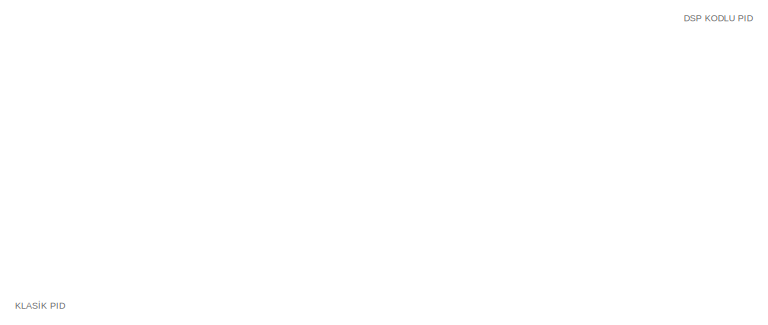
[diagram: root canvas - part 1/11, top right region]
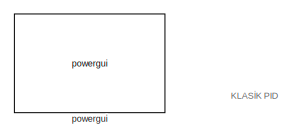
[diagram: root canvas - part 2/11, top left region]
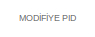
[diagram: root canvas - part 3/11, top center region]
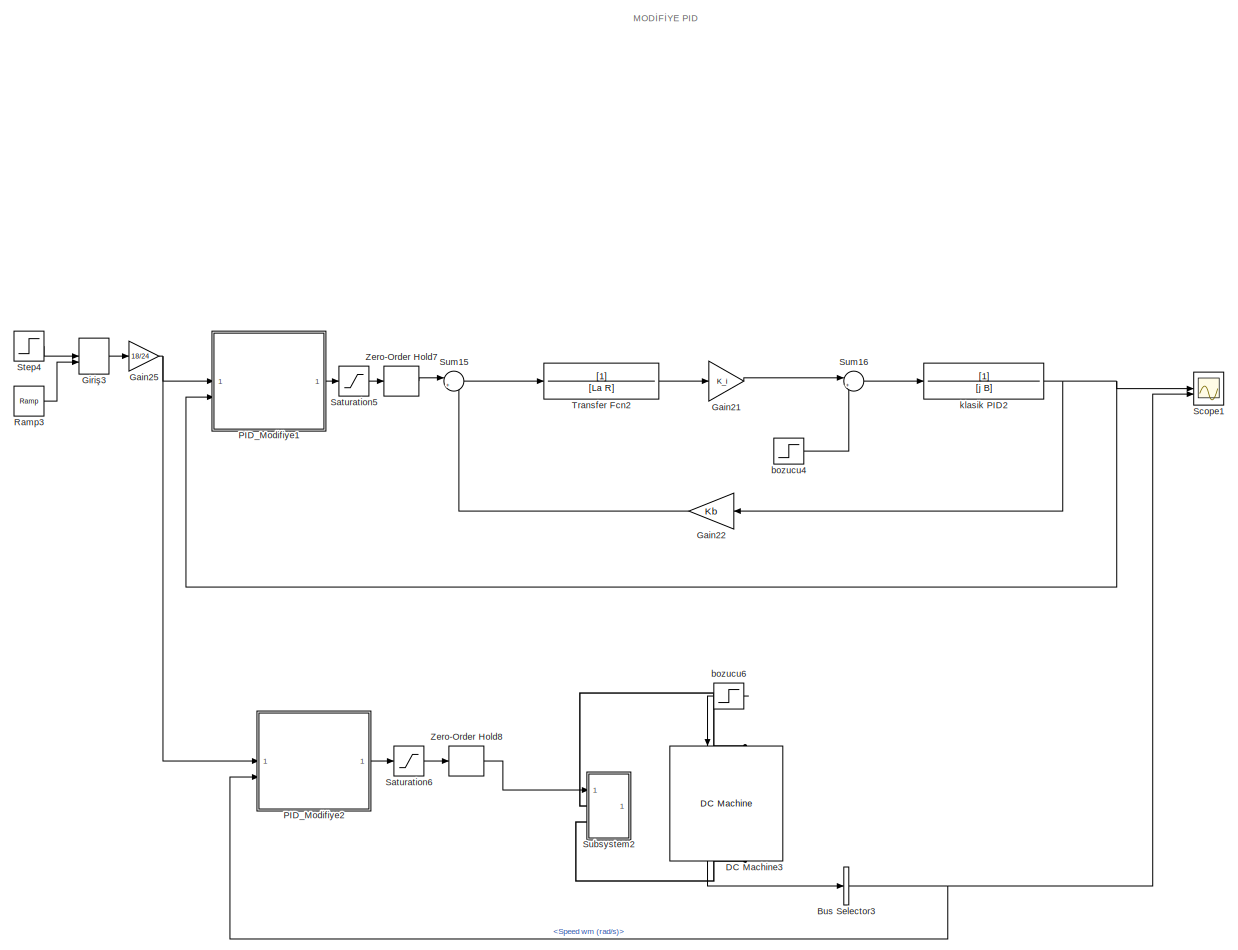
[diagram: root canvas - part 4/11, middle right region]
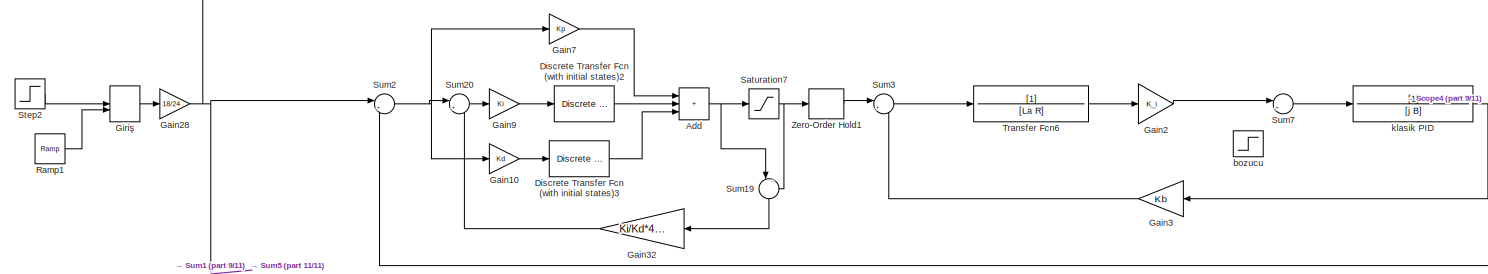
[diagram: root canvas - part 5/11, middle left region]
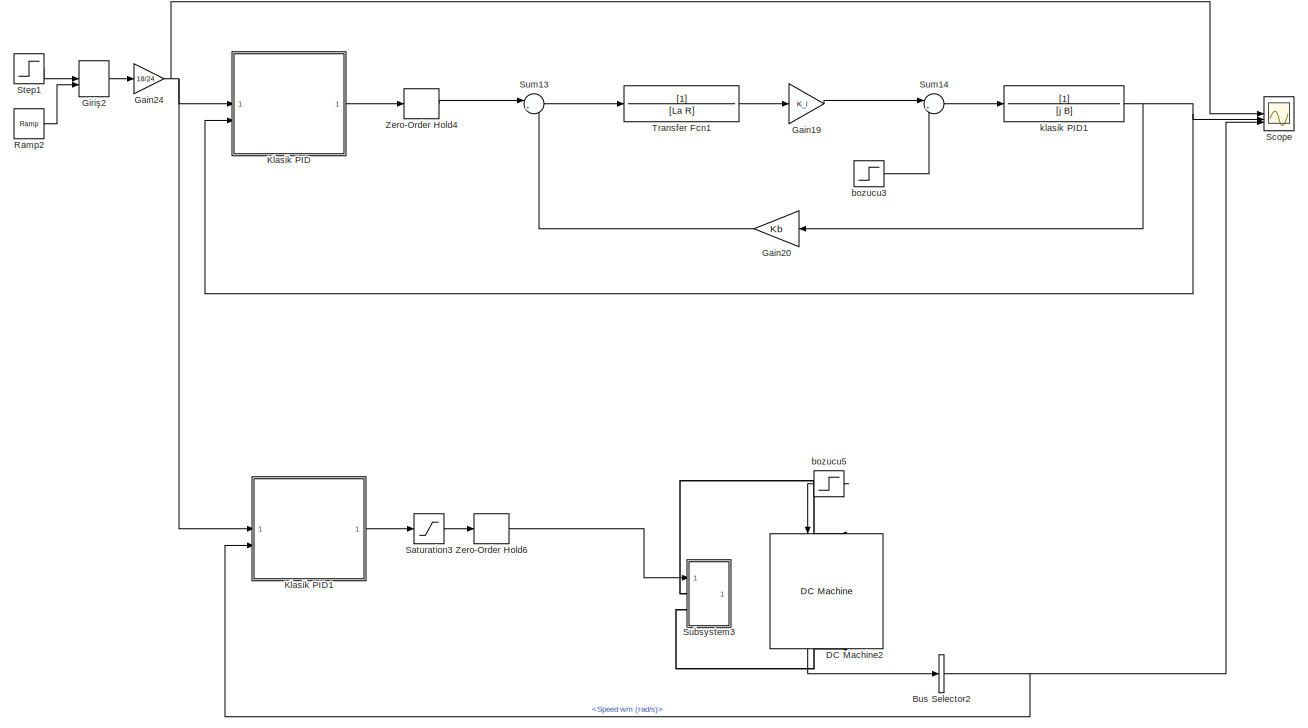
[diagram: root canvas - part 6/11, middle right region]
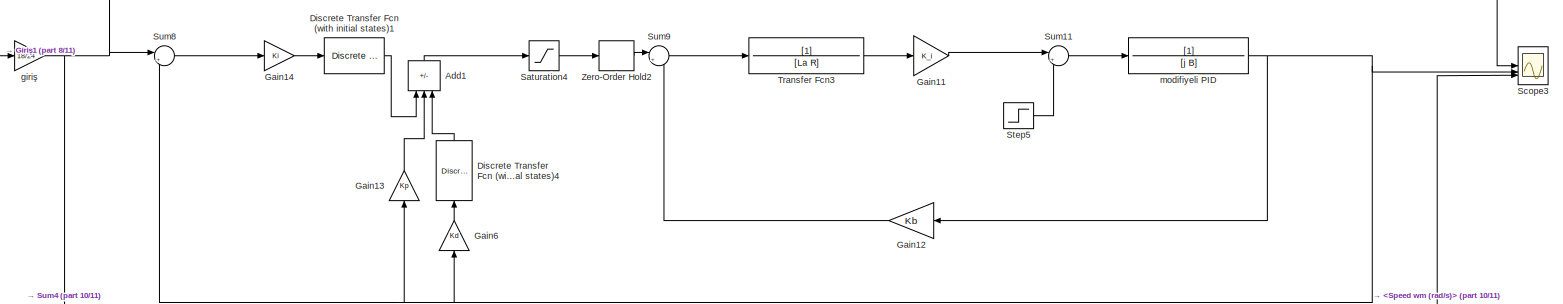
[diagram: root canvas - part 7/11, central region]
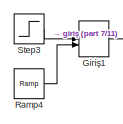
[diagram: root canvas - part 8/11, middle left region]
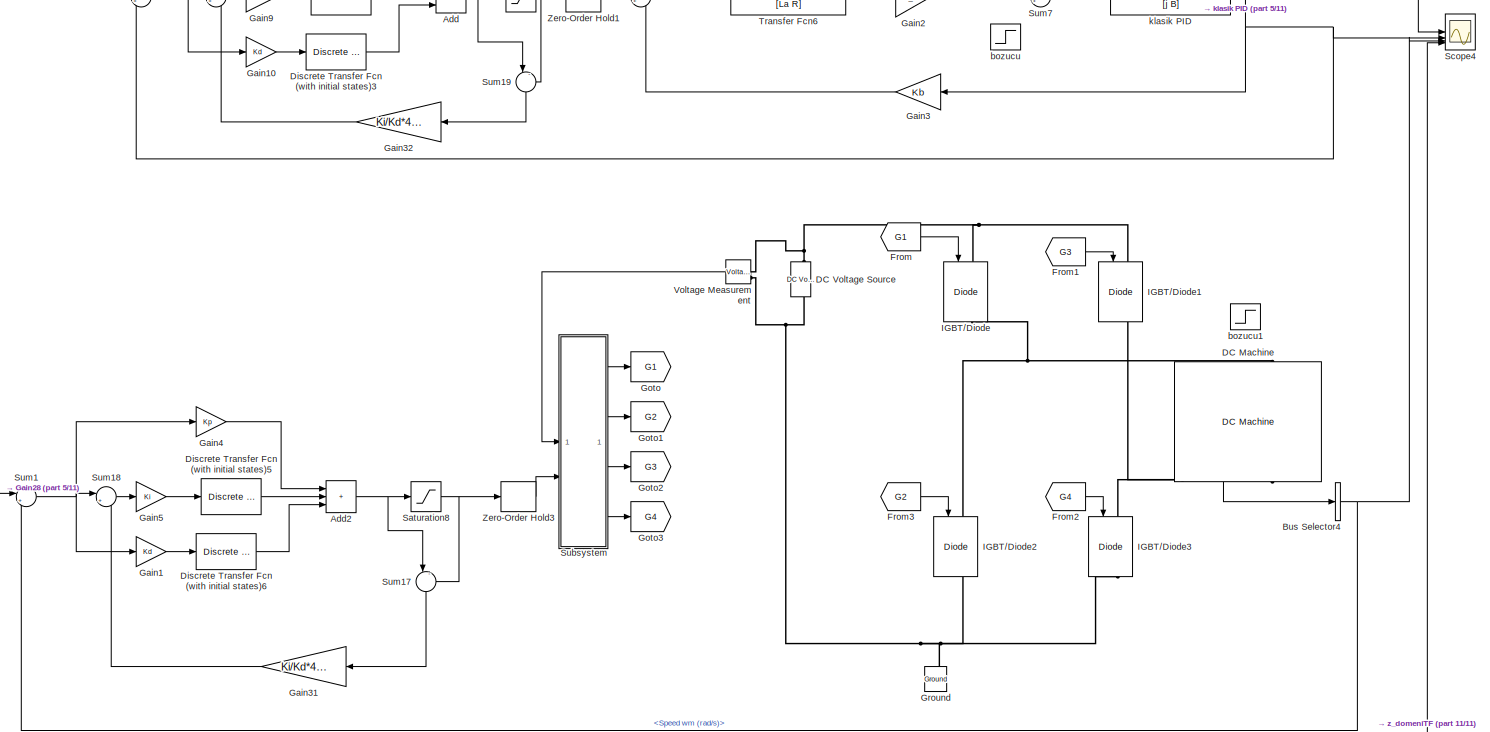
[diagram: root canvas - part 9/11, middle left region]
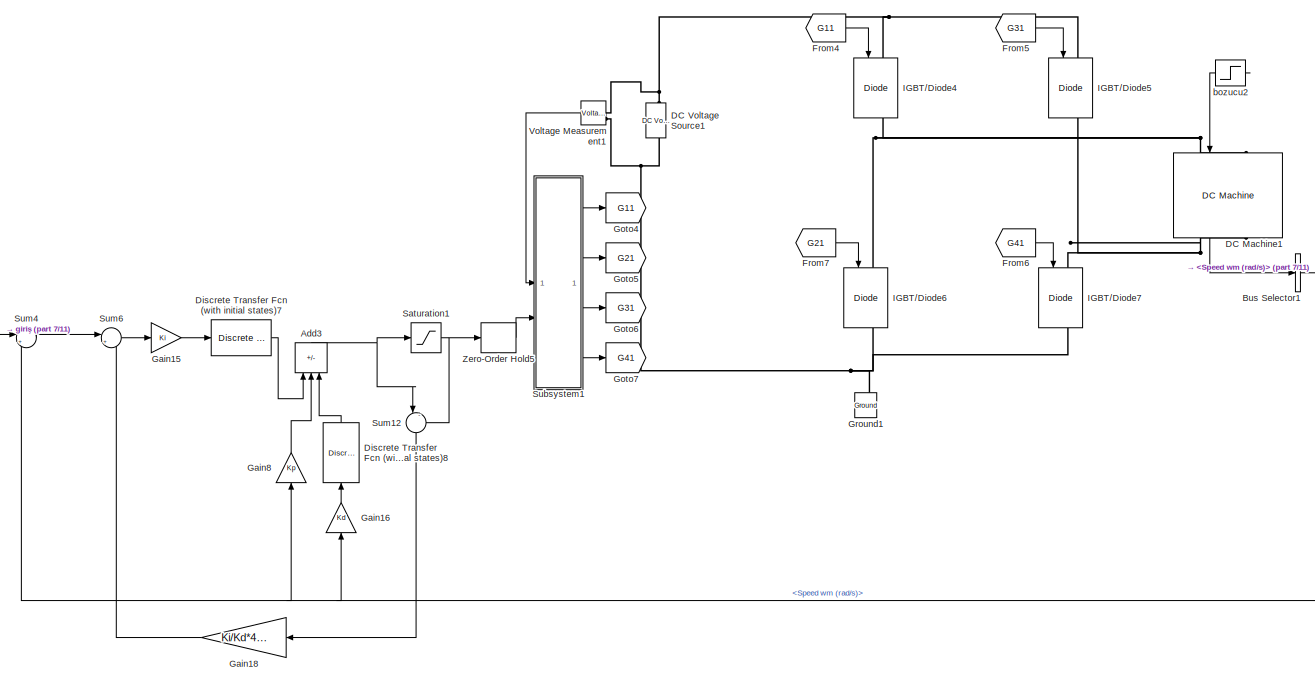
[diagram: root canvas - part 10/11, bottom center region]
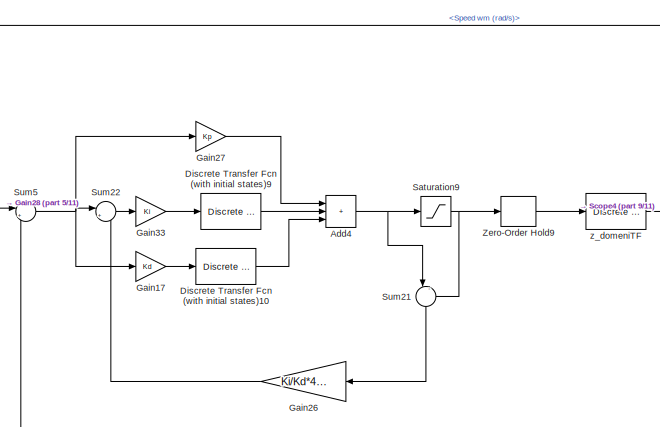
[diagram: root canvas - part 11/11, bottom left region]
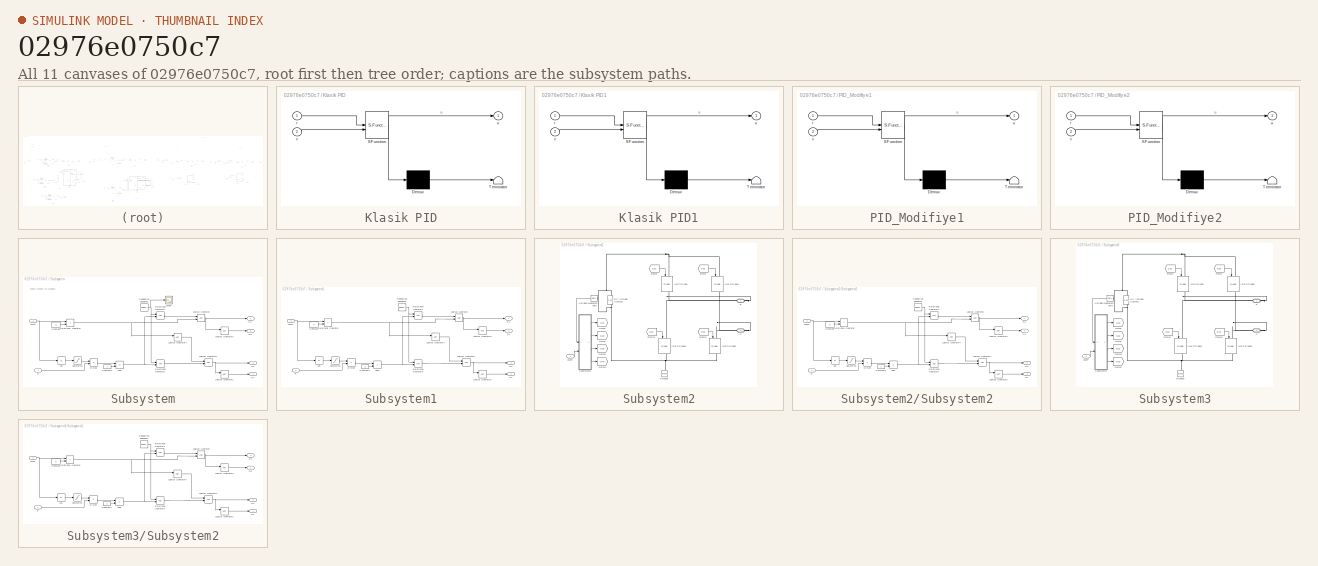
[diagram: thumbnail index - all 11 canvases of the model, root first then tree order]
MODEL slx_02976e0750c7
KIND model
CONFIG AbsTol = auto
CONFIG EnableMultiTasking = off
CONFIG FixedStep = auto
CONFIG MaxStep = auto
CONFIG MinStep = auto
CONFIG RelTol = 1e-3
CONFIG SampleTimeConstraint = Unconstrained
CONFIG SolverName = VariableStepAuto
CONFIG StartTime = 0.0
CONFIG StopTime = 5
BLOCK [Sum] Add
  Commented = on
  IconShape = rectangular
  Inputs = +++
BLOCK [Sum] Add1
  Commented = on
  IconShape = rectangular
  Inputs = +--
  NameLocation = right
BLOCK [Sum] Add2
  Commented = on
  IconShape = rectangular
  Inputs = +++
BLOCK [Sum] Add3
  Commented = on
  IconShape = rectangular
  Inputs = +--
  NameLocation = right
BLOCK [Sum] Add4
  Commented = on
  IconShape = rectangular
  Inputs = +++
BLOCK [BusSelector] Bus Selector1
  Commented = on
  OutputSignals = Speed wm (rad/s)
BLOCK [BusSelector] Bus Selector2
  Commented = on
  OutputSignals = Speed wm (rad/s)
BLOCK [BusSelector] Bus Selector3
  OutputSignals = Speed wm (rad/s)
BLOCK [BusSelector] Bus Selector4
  Commented = on
  OutputSignals = Speed wm (rad/s)
BLOCK [Reference] DC Machine  REF=spsDCMachineLib/DC Machine
  Commented = on
  LibrarySourceBlock = sps_lib/Electrical Machines/DC Machine
  NameLocation = left
  SourceBlock = spsDCMachineLib/DC Machine
  SourceType = DC machine
BLOCK [Reference] DC Machine1  REF=spsDCMachineLib/DC Machine
  Commented = on
  LibrarySourceBlock = sps_lib/Electrical Machines/DC Machine
  NameLocation = left
  SourceBlock = spsDCMachineLib/DC Machine
  SourceType = DC machine
BLOCK [Reference] DC Machine2  REF=spsDCMachineLib/DC Machine
  Commented = on
  LibrarySourceBlock = sps_lib/Electrical Machines/DC Machine
  NameLocation = left
  SourceBlock = spsDCMachineLib/DC Machine
  SourceType = DC machine
BLOCK [Reference] DC Machine3  REF=spsDCMachineLib/DC Machine
  LibrarySourceBlock = sps_lib/Electrical Machines/DC Machine
  NameLocation = left
  SourceBlock = spsDCMachineLib/DC Machine
  SourceType = DC machine
BLOCK [Reference] DC Voltage Source  REF=spsDCVoltageSourceLib/DC Voltage Source
  Commented = on
  LibrarySourceBlock = sps_lib/Sources/DC Voltage Source
  SourceBlock = spsDCVoltageSourceLib/DC Voltage Source
  SourceType = DC Voltage Source
BLOCK [Reference] DC Voltage Source1  REF=spsDCVoltageSourceLib/DC Voltage Source
  Commented = on
  LibrarySourceBlock = sps_lib/Sources/DC Voltage Source
  SourceBlock = spsDCVoltageSourceLib/DC Voltage Source
  SourceType = DC Voltage Source
BLOCK [Reference] Discrete Transfer Fcn (with initial states)1  REF=simulink_extras/Additional
Discrete/Discrete
Transfer Fcn
(with initial states)
  Commented = on
  SourceBlock = simulink_extras/Additional\nDiscrete/Discrete\nTransfer Fcn\n(with initial states)
  SourceType = Discrete Transfer Function with Initial States
BLOCK [Reference] Discrete Transfer Fcn (with initial states)10  REF=simulink_extras/Additional
Discrete/Discrete
Transfer Fcn
(with initial states)
  Commented = on
  SourceBlock = simulink_extras/Additional\nDiscrete/Discrete\nTransfer Fcn\n(with initial states)
  SourceType = Discrete Transfer Function with Initial States
BLOCK [Reference] Discrete Transfer Fcn (with initial states)2  REF=simulink_extras/Additional
Discrete/Discrete
Transfer Fcn
(with initial states)
  Commented = on
  SourceBlock = simulink_extras/Additional\nDiscrete/Discrete\nTransfer Fcn\n(with initial states)
  SourceType = Discrete Transfer Function with Initial States
BLOCK [Reference] Discrete Transfer Fcn (with initial states)3  REF=simulink_extras/Additional
Discrete/Discrete
Transfer Fcn
(with initial states)
  Commented = on
  SourceBlock = simulink_extras/Additional\nDiscrete/Discrete\nTransfer Fcn\n(with initial states)
  SourceType = Discrete Transfer Function with Initial States
BLOCK [Reference] Discrete Transfer Fcn (with initial states)4  REF=simulink_extras/Additional
Discrete/Discrete
Transfer Fcn
(with initial states)
  Commented = on
  NameLocation = right
  SourceBlock = simulink_extras/Additional\nDiscrete/Discrete\nTransfer Fcn\n(with initial states)
  SourceType = Discrete Transfer Function with Initial States
BLOCK [Reference] Discrete Transfer Fcn (with initial states)5  REF=simulink_extras/Additional
Discrete/Discrete
Transfer Fcn
(with initial states)
  Commented = on
  SourceBlock = simulink_extras/Additional\nDiscrete/Discrete\nTransfer Fcn\n(with initial states)
  SourceType = Discrete Transfer Function with Initial States
BLOCK [Reference] Discrete Transfer Fcn (with initial states)6  REF=simulink_extras/Additional
Discrete/Discrete
Transfer Fcn
(with initial states)
  Commented = on
  SourceBlock = simulink_extras/Additional\nDiscrete/Discrete\nTransfer Fcn\n(with initial states)
  SourceType = Discrete Transfer Function with Initial States
BLOCK [Reference] Discrete Transfer Fcn (with initial states)7  REF=simulink_extras/Additional
Discrete/Discrete
Transfer Fcn
(with initial states)
  Commented = on
  SourceBlock = simulink_extras/Additional\nDiscrete/Discrete\nTransfer Fcn\n(with initial states)
  SourceType = Discrete Transfer Function with Initial States
BLOCK [Reference] Discrete Transfer Fcn (with initial states)8  REF=simulink_extras/Additional
Discrete/Discrete
Transfer Fcn
(with initial states)
  Commented = on
  NameLocation = right
  SourceBlock = simulink_extras/Additional\nDiscrete/Discrete\nTransfer Fcn\n(with initial states)
  SourceType = Discrete Transfer Function with Initial States
BLOCK [Reference] Discrete Transfer Fcn (with initial states)9  REF=simulink_extras/Additional
Discrete/Discrete
Transfer Fcn
(with initial states)
  Commented = on
  SourceBlock = simulink_extras/Additional\nDiscrete/Discrete\nTransfer Fcn\n(with initial states)
  SourceType = Discrete Transfer Function with Initial States
BLOCK [From] From
  Commented = on
  GotoTag = G1
BLOCK [From] From1
  Commented = on
  GotoTag = G3
BLOCK [From] From2
  Commented = on
  GotoTag = G4
BLOCK [From] From3
  Commented = on
  GotoTag = G2
BLOCK [From] From4
  Commented = on
  GotoTag = G11
BLOCK [From] From5
  Commented = on
  GotoTag = G31
BLOCK [From] From6
  Commented = on
  GotoTag = G41
BLOCK [From] From7
  Commented = on
  GotoTag = G21
BLOCK [Gain] Gain1
  Commented = on
  Gain = Kd
BLOCK [Gain] Gain10
  Commented = on
  Gain = Kd
BLOCK [Gain] Gain11
  Commented = on
  Gain = K_i
BLOCK [Gain] Gain12
  Commented = on
  Gain = Kb
BLOCK [Gain] Gain13
  Commented = on
  Gain = Kp
  NameLocation = right
BLOCK [Gain] Gain14
  Commented = on
  Gain = Ki
BLOCK [Gain] Gain15
  Commented = on
  Gain = Ki
BLOCK [Gain] Gain16
  Commented = on
  Gain = Kd
  NameLocation = right
BLOCK [Gain] Gain17
  Commented = on
  Gain = Kd
BLOCK [Gain] Gain18
  Commented = on
  Gain = Ki/Kd*4.35
BLOCK [Gain] Gain19
  Commented = on
  Gain = K_i
BLOCK [Gain] Gain2
  Commented = on
  Gain = K_i
BLOCK [Gain] Gain20
  Commented = on
  Gain = Kb
BLOCK [Gain] Gain21
  Gain = K_i
BLOCK [Gain] Gain22
  Gain = Kb
BLOCK [Gain] Gain24
  Commented = on
  Gain = 18/24
BLOCK [Gain] Gain25
  Gain = 18/24
BLOCK [Gain] Gain26
  Commented = on
  Gain = Ki/Kd*4.35
BLOCK [Gain] Gain27
  Commented = on
  Gain = Kp
BLOCK [Gain] Gain28
  Commented = on
  Gain = 18/24
BLOCK [Gain] Gain3
  Commented = on
  Gain = Kb
BLOCK [Gain] Gain31
  Commented = on
  Gain = Ki/Kd*4.35
BLOCK [Gain] Gain32
  Commented = on
  Gain = Ki/Kd*4.35
BLOCK [Gain] Gain33
  Commented = on
  Gain = Ki
BLOCK [Gain] Gain4
  Commented = on
  Gain = Kp
BLOCK [Gain] Gain5
  Commented = on
  Gain = Ki
BLOCK [Gain] Gain6
  Commented = on
  Gain = Kd
  NameLocation = right
BLOCK [Gain] Gain7
  Commented = on
  Gain = Kp
BLOCK [Gain] Gain8
  Commented = on
  Gain = Kp
  NameLocation = right
BLOCK [Gain] Gain9
  Commented = on
  Gain = Ki
BLOCK [ManualSwitch] Giriş
  Commented = on
BLOCK [ManualSwitch] Giriş1
  Commented = on
BLOCK [ManualSwitch] Giriş2
  Commented = on
BLOCK [ManualSwitch] Giriş3
BLOCK [Goto] Goto
  Commented = on
  GotoTag = G1
BLOCK [Goto] Goto1
  Commented = on
  GotoTag = G2
BLOCK [Goto] Goto2
  Commented = on
  GotoTag = G3
BLOCK [Goto] Goto3
  Commented = on
  GotoTag = G4
BLOCK [Goto] Goto4
  Commented = on
  GotoTag = G11
BLOCK [Goto] Goto5
  Commented = on
  GotoTag = G21
BLOCK [Goto] Goto6
  Commented = on
  GotoTag = G31
BLOCK [Goto] Goto7
  Commented = on
  GotoTag = G41
BLOCK [Reference] Ground  REF=spsGroundLib/Ground
  Commented = on
  LibrarySourceBlock = sps_lib/Utilities/Ground
  NameLocation = right
  SourceBlock = spsGroundLib/Ground
  SourceType = Ground
BLOCK [Reference] Ground1  REF=spsGroundLib/Ground
  Commented = on
  LibrarySourceBlock = sps_lib/Utilities/Ground
  NameLocation = right
  SourceBlock = spsGroundLib/Ground
  SourceType = Ground
BLOCK [Reference] IGBT//Diode  REF=spsIGBTDiodeLib/IGBT//Diode
  Commented = on
  LibrarySourceBlock = sps_lib/Power Electronics/IGBT//Diode
  NameLocation = right
  SourceBlock = spsIGBTDiodeLib/IGBT//Diode
  SourceType = IGBT/Diode
BLOCK [Reference] IGBT//Diode1  REF=spsIGBTDiodeLib/IGBT//Diode
  Commented = on
  LibrarySourceBlock = sps_lib/Power Electronics/IGBT//Diode
  NameLocation = right
  SourceBlock = spsIGBTDiodeLib/IGBT//Diode
  SourceType = IGBT/Diode
BLOCK [Reference] IGBT//Diode2  REF=spsIGBTDiodeLib/IGBT//Diode
  Commented = on
  LibrarySourceBlock = sps_lib/Power Electronics/IGBT//Diode
  NameLocation = right
  SourceBlock = spsIGBTDiodeLib/IGBT//Diode
  SourceType = IGBT/Diode
BLOCK [Reference] IGBT//Diode3  REF=spsIGBTDiodeLib/IGBT//Diode
  Commented = on
  LibrarySourceBlock = sps_lib/Power Electronics/IGBT//Diode
  NameLocation = right
  SourceBlock = spsIGBTDiodeLib/IGBT//Diode
  SourceType = IGBT/Diode
BLOCK [Reference] IGBT//Diode4  REF=spsIGBTDiodeLib/IGBT//Diode
  Commented = on
  LibrarySourceBlock = sps_lib/Power Electronics/IGBT//Diode
  NameLocation = right
  SourceBlock = spsIGBTDiodeLib/IGBT//Diode
  SourceType = IGBT/Diode
BLOCK [Reference] IGBT//Diode5  REF=spsIGBTDiodeLib/IGBT//Diode
  Commented = on
  LibrarySourceBlock = sps_lib/Power Electronics/IGBT//Diode
  NameLocation = right
  SourceBlock = spsIGBTDiodeLib/IGBT//Diode
  SourceType = IGBT/Diode
BLOCK [Reference] IGBT//Diode6  REF=spsIGBTDiodeLib/IGBT//Diode
  Commented = on
  LibrarySourceBlock = sps_lib/Power Electronics/IGBT//Diode
  NameLocation = right
  SourceBlock = spsIGBTDiodeLib/IGBT//Diode
  SourceType = IGBT/Diode
BLOCK [Reference] IGBT//Diode7  REF=spsIGBTDiodeLib/IGBT//Diode
  Commented = on
  LibrarySourceBlock = sps_lib/Power Electronics/IGBT//Diode
  NameLocation = right
  SourceBlock = spsIGBTDiodeLib/IGBT//Diode
  SourceType = IGBT/Diode
BLOCK [SubSystem] Klasik PID
  Commented = on
  ErrorFcn = Stateflow.Translate.translate
  PermitHierarchicalResolution = ExplicitOnly
  SFBlockType = MATLAB Function
  TreatAsAtomicUnit = on
BLOCK [Demux] Klasik PID/ Demux 
  Outputs = 1
BLOCK [S-Function] Klasik PID/ SFunction 
  EnableBusSupport = on
  FunctionName = sf_sfun
  Parameters = Kd,Ki,Kp,Ref_max,Ref_min,Ts
  PortCounts = [2 2]
  SFcnIsStateOwnerBlock = off
  SFunctionDeploymentMode = off
  Tag = Stateflow S-Function 2
BLOCK [Terminator] Klasik PID/ Terminator 
BLOCK [Inport] Klasik PID/c
  Port = 2
BLOCK [Inport] Klasik PID/r
BLOCK [Outport] Klasik PID/u
BLOCK [SubSystem] Klasik PID1
  Commented = on
  ErrorFcn = Stateflow.Translate.translate
  PermitHierarchicalResolution = ExplicitOnly
  SFBlockType = MATLAB Function
  TreatAsAtomicUnit = on
BLOCK [Demux] Klasik PID1/ Demux 
  Outputs = 1
BLOCK [S-Function] Klasik PID1/ SFunction 
  EnableBusSupport = on
  FunctionName = sf_sfun
  Parameters = Kd,Ki,Kp,Ref_max,Ref_min,Ts
  PortCounts = [2 2]
  SFcnIsStateOwnerBlock = off
  SFunctionDeploymentMode = off
  Tag = Stateflow S-Function 3
BLOCK [Terminator] Klasik PID1/ Terminator 
BLOCK [Inport] Klasik PID1/c
  Port = 2
BLOCK [Inport] Klasik PID1/r
BLOCK [Outport] Klasik PID1/u
BLOCK [SubSystem] PID_Modifiye1
  ErrorFcn = Stateflow.Translate.translate
  PermitHierarchicalResolution = ExplicitOnly
  SFBlockType = MATLAB Function
  TreatAsAtomicUnit = on
BLOCK [Demux] PID_Modifiye1/ Demux 
  Outputs = 1
BLOCK [S-Function] PID_Modifiye1/ SFunction 
  EnableBusSupport = on
  FunctionName = sf_sfun
  Parameters = Kd,Ki,Kp,Ref_max,Ref_min,Ts
  PortCounts = [2 2]
  SFcnIsStateOwnerBlock = off
  SFunctionDeploymentMode = off
  Tag = Stateflow S-Function 1
BLOCK [Terminator] PID_Modifiye1/ Terminator 
BLOCK [Inport] PID_Modifiye1/c
  Port = 2
BLOCK [Inport] PID_Modifiye1/r
BLOCK [Outport] PID_Modifiye1/u
BLOCK [SubSystem] PID_Modifiye2
  ErrorFcn = Stateflow.Translate.translate
  PermitHierarchicalResolution = ExplicitOnly
  SFBlockType = MATLAB Function
  TreatAsAtomicUnit = on
BLOCK [Demux] PID_Modifiye2/ Demux 
  Outputs = 1
BLOCK [S-Function] PID_Modifiye2/ SFunction 
  EnableBusSupport = on
  FunctionName = sf_sfun
  Parameters = Kd,Ki,Kp,Ref_max,Ref_min,Ts
  PortCounts = [2 2]
  SFcnIsStateOwnerBlock = off
  SFunctionDeploymentMode = off
  Tag = Stateflow S-Function 4
BLOCK [Terminator] PID_Modifiye2/ Terminator 
BLOCK [Inport] PID_Modifiye2/c
  Port = 2
BLOCK [Inport] PID_Modifiye2/r
BLOCK [Outport] PID_Modifiye2/u
BLOCK [Reference] Ramp1  REF=simulink/Sources/Ramp
  Commented = on
  SourceBlock = simulink/Sources/Ramp
  SourceType = Ramp
BLOCK [Reference] Ramp2  REF=simulink/Sources/Ramp
  Commented = on
  SourceBlock = simulink/Sources/Ramp
  SourceType = Ramp
BLOCK [Reference] Ramp3  REF=simulink/Sources/Ramp
  SourceBlock = simulink/Sources/Ramp
  SourceType = Ramp
BLOCK [Reference] Ramp4  REF=simulink/Sources/Ramp
  Commented = on
  SourceBlock = simulink/Sources/Ramp
  SourceType = Ramp
BLOCK [Saturate] Saturation1
  Commented = on
  LowerLimit = -Ref
  UpperLimit = Ref
BLOCK [Saturate] Saturation3
  Commented = on
  LowerLimit = -Ref
  UpperLimit = Ref
BLOCK [Saturate] Saturation4
  Commented = on
  LowerLimit = -Ref
  UpperLimit = Ref
BLOCK [Saturate] Saturation5
  LowerLimit = -Ref
  UpperLimit = Ref
BLOCK [Saturate] Saturation6
  LowerLimit = -Ref
  UpperLimit = Ref
BLOCK [Saturate] Saturation7
  Commented = on
  LowerLimit = -Ref
  UpperLimit = Ref
BLOCK [Saturate] Saturation8
  Commented = on
  LowerLimit = -Ref
  UpperLimit = Ref
BLOCK [Saturate] Saturation9
  Commented = on
  LowerLimit = -Ref
  UpperLimit = Ref
BLOCK [Scope] Scope
  Commented = on
  Floating = off
  NumInputPorts = 3
  ScopeSpecificationString = Simulink.scopes.TimeScopeBlockCfg('CurrentConfiguration', extmgr.ConfigurationSet(extmgr.Configuration('Core','General UI',true),extmgr.Configuration('Core','Source UI',true),extmgr.Configuration('Sources','WiredSimulink',true,'DataLoggingVariableName','ScopeData1'),extmgr.Configuration('Visuals','Time Domain',true,'SerializedDisplays',{struct('MinYLimReal','-3.24692','MaxYLimReal','29.22229','YLa...<+1638ch>
BLOCK [Scope] Scope1
  Floating = off
  NumInputPorts = 2
  ScopeSpecificationString = Simulink.scopes.TimeScopeBlockCfg('CurrentConfiguration', extmgr.ConfigurationSet(extmgr.Configuration('Core','General UI',true),extmgr.Configuration('Core','Source UI',true),extmgr.Configuration('Sources','WiredSimulink',true,'DataLoggingVariableName','ScopeData2'),extmgr.Configuration('Visuals','Time Domain',true,'SerializedDisplays',{struct('MinYLimReal','-3.24692','MaxYLimReal','29.22229','YLa...<+1527ch>
BLOCK [Scope] Scope3
  Commented = on
  Floating = off
  NumInputPorts = 3
  ScopeSpecificationString = Simulink.scopes.TimeScopeBlockCfg('CurrentConfiguration', extmgr.ConfigurationSet(extmgr.Configuration('Core','General UI',true),extmgr.Configuration('Core','Source UI',true),extmgr.Configuration('Sources','WiredSimulink',true,'DataLoggingVariableName','ScopeData2'),extmgr.Configuration('Visuals','Time Domain',true,'SerializedDisplays',{struct('MinYLimReal','17.22728','MaxYLimReal','18.24025','YLa...<+1694ch>
BLOCK [Scope] Scope4
  Commented = on
  Floating = off
  NumInputPorts = 4
  ScopeSpecificationString = Simulink.scopes.TimeScopeBlockCfg('CurrentConfiguration', extmgr.ConfigurationSet(extmgr.Configuration('Core','General UI',true),extmgr.Configuration('Core','Source UI',true),extmgr.Configuration('Sources','WiredSimulink',true,'DataLoggingVariableName','ScopeData1'),extmgr.Configuration('Visuals','Time Domain',true,'SerializedDisplays',{struct('MinYLimReal','-4.00000','MaxYLimReal','36.00000','YLa...<+1747ch>
BLOCK [Step] Step1
  After = Ref
  Commented = on
  SampleTime = 0
  Time = 0
BLOCK [Step] Step2
  After = Ref
  Commented = on
  SampleTime = 0
  Time = 0
BLOCK [Step] Step3
  After = Ref
  Commented = on
  SampleTime = 0
  Time = 0
BLOCK [Step] Step4
  After = Ref
  SampleTime = 0
  Time = 0
BLOCK [Step] Step5
  After = 0
  Commented = on
  SampleTime = 0
  Time = 0
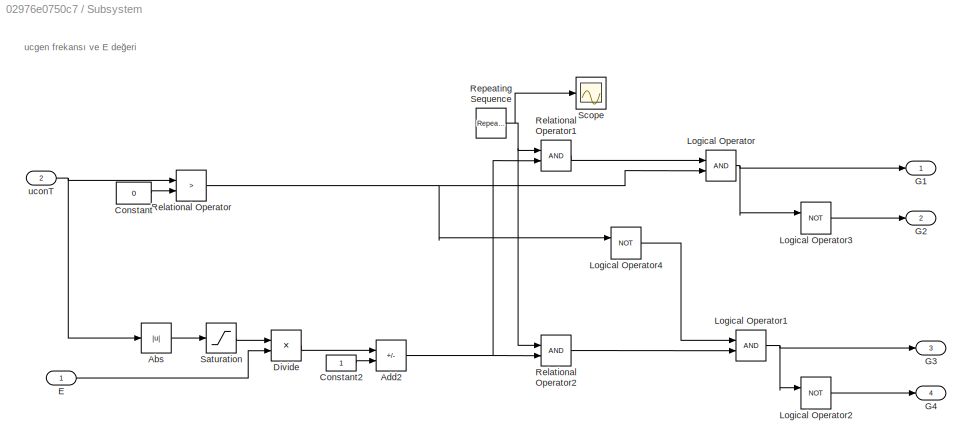
BLOCK [SubSystem] Subsystem
  Commented = on
BLOCK [Abs] Subsystem/Abs
  SaturateOnIntegerOverflow = off
BLOCK [Sum] Subsystem/Add2
  IconShape = rectangular
  Inputs = -+
BLOCK [Constant] Subsystem/Constant
  Value = 0
BLOCK [Constant] Subsystem/Constant2
BLOCK [Product] Subsystem/Divide
  Inputs = */
BLOCK [Inport] Subsystem/E
BLOCK [Outport] Subsystem/G1
BLOCK [Outport] Subsystem/G2
  Port = 2
BLOCK [Outport] Subsystem/G3
  Port = 3
BLOCK [Outport] Subsystem/G4
  Port = 4
BLOCK [Logic] Subsystem/Logical Operator
  AllPortsSameDT = off
  OutDataTypeStr = boolean
BLOCK [Logic] Subsystem/Logical Operator1
  AllPortsSameDT = off
  OutDataTypeStr = boolean
BLOCK [Logic] Subsystem/Logical Operator2
  AllPortsSameDT = off
  Operator = NOT
  OutDataTypeStr = boolean
BLOCK [Logic] Subsystem/Logical Operator3
  AllPortsSameDT = off
  Operator = NOT
  OutDataTypeStr = boolean
BLOCK [Logic] Subsystem/Logical Operator4
  AllPortsSameDT = off
  Operator = NOT
  OutDataTypeStr = boolean
BLOCK [RelationalOperator] Subsystem/Relational Operator
  InputSameDT = off
  Operator = >
  OutDataTypeStr = boolean
  RndMeth = Simplest
BLOCK [RelationalOperator] Subsystem/Relational Operator1
  InputSameDT = off
  OutDataTypeStr = boolean
  RndMeth = Simplest
BLOCK [RelationalOperator] Subsystem/Relational Operator2
  InputSameDT = off
  OutDataTypeStr = boolean
  RndMeth = Simplest
BLOCK [Reference] Subsystem/Repeating Sequence  REF=simulink/Sources/Repeating
Sequence
  SourceBlock = simulink/Sources/Repeating\nSequence
  SourceType = Repeating table
BLOCK [Saturate] Subsystem/Saturation
  UpperLimit = 24
BLOCK [Scope] Subsystem/Scope
  Floating = off
  NumInputPorts = 1
  ScopeSpecificationString = Simulink.scopes.TimeScopeBlockCfg('CurrentConfiguration', extmgr.ConfigurationSet(extmgr.Configuration('Core','General UI',true),extmgr.Configuration('Core','Source UI',true),extmgr.Configuration('Sources','WiredSimulink',true,'DataLoggingVariableName','ScopeData2'),extmgr.Configuration('Visuals','Time Domain',true,'SerializedDisplays',{struct('MinYLimReal','-0.06643','MaxYLimReal','1.07754','YLab...<+1543ch>
BLOCK [Inport] Subsystem/uconT
  Port = 2
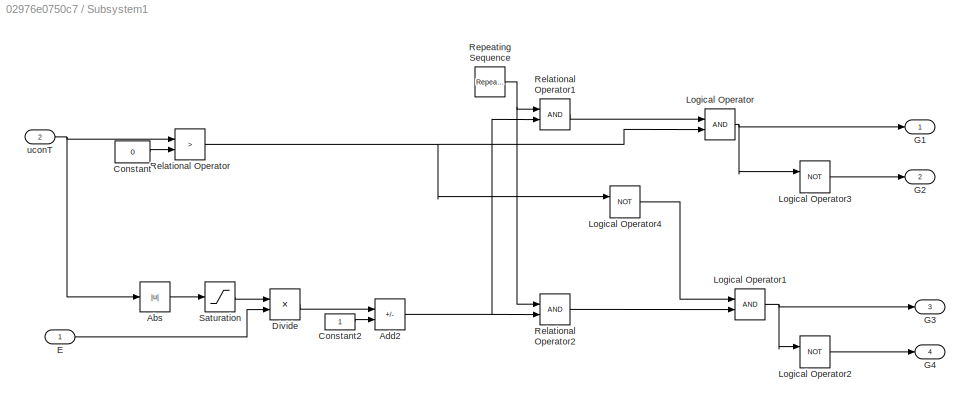
BLOCK [SubSystem] Subsystem1
  Commented = on
BLOCK [Abs] Subsystem1/Abs
  SaturateOnIntegerOverflow = off
BLOCK [Sum] Subsystem1/Add2
  IconShape = rectangular
  Inputs = -+
BLOCK [Constant] Subsystem1/Constant
  Value = 0
BLOCK [Constant] Subsystem1/Constant2
BLOCK [Product] Subsystem1/Divide
  Inputs = */
BLOCK [Inport] Subsystem1/E
BLOCK [Outport] Subsystem1/G1
BLOCK [Outport] Subsystem1/G2
  Port = 2
BLOCK [Outport] Subsystem1/G3
  Port = 3
BLOCK [Outport] Subsystem1/G4
  Port = 4
BLOCK [Logic] Subsystem1/Logical Operator
  AllPortsSameDT = off
  OutDataTypeStr = boolean
BLOCK [Logic] Subsystem1/Logical Operator1
  AllPortsSameDT = off
  OutDataTypeStr = boolean
BLOCK [Logic] Subsystem1/Logical Operator2
  AllPortsSameDT = off
  Operator = NOT
  OutDataTypeStr = boolean
BLOCK [Logic] Subsystem1/Logical Operator3
  AllPortsSameDT = off
  Operator = NOT
  OutDataTypeStr = boolean
BLOCK [Logic] Subsystem1/Logical Operator4
  AllPortsSameDT = off
  Operator = NOT
  OutDataTypeStr = boolean
BLOCK [RelationalOperator] Subsystem1/Relational Operator
  InputSameDT = off
  Operator = >
  OutDataTypeStr = boolean
  RndMeth = Simplest
BLOCK [RelationalOperator] Subsystem1/Relational Operator1
  InputSameDT = off
  OutDataTypeStr = boolean
  RndMeth = Simplest
BLOCK [RelationalOperator] Subsystem1/Relational Operator2
  InputSameDT = off
  OutDataTypeStr = boolean
  RndMeth = Simplest
BLOCK [Reference] Subsystem1/Repeating Sequence  REF=simulink/Sources/Repeating
Sequence
  SourceBlock = simulink/Sources/Repeating\nSequence
  SourceType = Repeating table
BLOCK [Saturate] Subsystem1/Saturation
  LowerLimit = -Ref
  UpperLimit = Ref
BLOCK [Inport] Subsystem1/uconT
  Port = 2
BLOCK [SubSystem] Subsystem2
BLOCK [PMIOPort] Subsystem2/C
  Port = 2
  Side = Left
BLOCK [Reference] Subsystem2/DC Voltage Source2  REF=spsDCVoltageSourceLib/DC Voltage Source
  LibrarySourceBlock = sps_lib/Sources/DC Voltage Source
  SourceBlock = spsDCVoltageSourceLib/DC Voltage Source
  SourceType = DC Voltage Source
BLOCK [PMIOPort] Subsystem2/E
  Side = Left
BLOCK [From] Subsystem2/From10
  GotoTag = G43
BLOCK [From] Subsystem2/From11
  GotoTag = G23
BLOCK [From] Subsystem2/From8
  GotoTag = G13
BLOCK [From] Subsystem2/From9
  GotoTag = G33
BLOCK [Goto] Subsystem2/Goto10
  GotoTag = G33
BLOCK [Goto] Subsystem2/Goto11
  GotoTag = G43
BLOCK [Goto] Subsystem2/Goto8
  GotoTag = G13
BLOCK [Goto] Subsystem2/Goto9
  GotoTag = G23
BLOCK [Reference] Subsystem2/Ground2  REF=spsGroundLib/Ground
  LibrarySourceBlock = sps_lib/Utilities/Ground
  NameLocation = right
  SourceBlock = spsGroundLib/Ground
  SourceType = Ground
BLOCK [Reference] Subsystem2/IGBT//Diode  REF=spsIGBTDiodeLib/IGBT//Diode
  LibrarySourceBlock = sps_lib/Power Electronics/IGBT//Diode
  NameLocation = right
  SourceBlock = spsIGBTDiodeLib/IGBT//Diode
  SourceType = IGBT/Diode
BLOCK [Reference] Subsystem2/IGBT//Diode1  REF=spsIGBTDiodeLib/IGBT//Diode
  LibrarySourceBlock = sps_lib/Power Electronics/IGBT//Diode
  NameLocation = right
  SourceBlock = spsIGBTDiodeLib/IGBT//Diode
  SourceType = IGBT/Diode
BLOCK [Reference] Subsystem2/IGBT//Diode2  REF=spsIGBTDiodeLib/IGBT//Diode
  LibrarySourceBlock = sps_lib/Power Electronics/IGBT//Diode
  NameLocation = right
  SourceBlock = spsIGBTDiodeLib/IGBT//Diode
  SourceType = IGBT/Diode
BLOCK [Reference] Subsystem2/IGBT//Diode3  REF=spsIGBTDiodeLib/IGBT//Diode
  LibrarySourceBlock = sps_lib/Power Electronics/IGBT//Diode
  NameLocation = right
  SourceBlock = spsIGBTDiodeLib/IGBT//Diode
  SourceType = IGBT/Diode
BLOCK [SubSystem] Subsystem2/Subsystem2
BLOCK [Abs] Subsystem2/Subsystem2/Abs
  SaturateOnIntegerOverflow = off
BLOCK [Sum] Subsystem2/Subsystem2/Add2
  IconShape = rectangular
  Inputs = -+
BLOCK [Constant] Subsystem2/Subsystem2/Constant
  Value = 0
BLOCK [Constant] Subsystem2/Subsystem2/Constant2
BLOCK [Product] Subsystem2/Subsystem2/Divide
  Inputs = */
BLOCK [Inport] Subsystem2/Subsystem2/E
BLOCK [Outport] Subsystem2/Subsystem2/G1
BLOCK [Outport] Subsystem2/Subsystem2/G2
  Port = 2
BLOCK [Outport] Subsystem2/Subsystem2/G3
  Port = 3
BLOCK [Outport] Subsystem2/Subsystem2/G4
  Port = 4
BLOCK [Logic] Subsystem2/Subsystem2/Logical Operator
  AllPortsSameDT = off
  OutDataTypeStr = boolean
BLOCK [Logic] Subsystem2/Subsystem2/Logical Operator1
  AllPortsSameDT = off
  OutDataTypeStr = boolean
BLOCK [Logic] Subsystem2/Subsystem2/Logical Operator2
  AllPortsSameDT = off
  Operator = NOT
  OutDataTypeStr = boolean
BLOCK [Logic] Subsystem2/Subsystem2/Logical Operator3
  AllPortsSameDT = off
  Operator = NOT
  OutDataTypeStr = boolean
BLOCK [Logic] Subsystem2/Subsystem2/Logical Operator4
  AllPortsSameDT = off
  Operator = NOT
  OutDataTypeStr = boolean
BLOCK [RelationalOperator] Subsystem2/Subsystem2/Relational Operator
  InputSameDT = off
  Operator = >
  OutDataTypeStr = boolean
  RndMeth = Simplest
BLOCK [RelationalOperator] Subsystem2/Subsystem2/Relational Operator1
  InputSameDT = off
  OutDataTypeStr = boolean
  RndMeth = Simplest
BLOCK [RelationalOperator] Subsystem2/Subsystem2/Relational Operator2
  InputSameDT = off
  OutDataTypeStr = boolean
  RndMeth = Simplest
BLOCK [Reference] Subsystem2/Subsystem2/Repeating Sequence  REF=simulink/Sources/Repeating
Sequence
  SourceBlock = simulink/Sources/Repeating\nSequence
  SourceType = Repeating table
BLOCK [Saturate] Subsystem2/Subsystem2/Saturation
  LowerLimit = -Ref
  UpperLimit = Ref
BLOCK [Inport] Subsystem2/Subsystem2/uconT
  Port = 2
BLOCK [Reference] Subsystem2/Voltage Measurement2  REF=spsVoltageMeasurementLib/Voltage Measurement
  LibrarySourceBlock = sps_lib/Sensors and Measurements/Voltage Measurement
  SourceBlock = spsVoltageMeasurementLib/Voltage Measurement
  SourceType = Voltage Measurement
  UserDataPersistent = on
BLOCK [Inport] Subsystem2/uconT
BLOCK [SubSystem] Subsystem3
  Commented = on
BLOCK [PMIOPort] Subsystem3/C
  Port = 2
  Side = Left
BLOCK [Reference] Subsystem3/DC Voltage Source2  REF=spsDCVoltageSourceLib/DC Voltage Source
  LibrarySourceBlock = sps_lib/Sources/DC Voltage Source
  SourceBlock = spsDCVoltageSourceLib/DC Voltage Source
  SourceType = DC Voltage Source
BLOCK [PMIOPort] Subsystem3/E
  Side = Left
BLOCK [From] Subsystem3/From10
  GotoTag = G42
BLOCK [From] Subsystem3/From11
  GotoTag = G22
BLOCK [From] Subsystem3/From8
  GotoTag = G12
BLOCK [From] Subsystem3/From9
  GotoTag = G32
BLOCK [Goto] Subsystem3/Goto10
  GotoTag = G32
BLOCK [Goto] Subsystem3/Goto11
  GotoTag = G42
BLOCK [Goto] Subsystem3/Goto8
  GotoTag = G12
BLOCK [Goto] Subsystem3/Goto9
  GotoTag = G22
BLOCK [Reference] Subsystem3/Ground2  REF=spsGroundLib/Ground
  LibrarySourceBlock = sps_lib/Utilities/Ground
  NameLocation = right
  SourceBlock = spsGroundLib/Ground
  SourceType = Ground
BLOCK [Reference] Subsystem3/IGBT//Diode  REF=spsIGBTDiodeLib/IGBT//Diode
  LibrarySourceBlock = sps_lib/Power Electronics/IGBT//Diode
  NameLocation = right
  SourceBlock = spsIGBTDiodeLib/IGBT//Diode
  SourceType = IGBT/Diode
BLOCK [Reference] Subsystem3/IGBT//Diode1  REF=spsIGBTDiodeLib/IGBT//Diode
  LibrarySourceBlock = sps_lib/Power Electronics/IGBT//Diode
  NameLocation = right
  SourceBlock = spsIGBTDiodeLib/IGBT//Diode
  SourceType = IGBT/Diode
BLOCK [Reference] Subsystem3/IGBT//Diode2  REF=spsIGBTDiodeLib/IGBT//Diode
  LibrarySourceBlock = sps_lib/Power Electronics/IGBT//Diode
  NameLocation = right
  SourceBlock = spsIGBTDiodeLib/IGBT//Diode
  SourceType = IGBT/Diode
BLOCK [Reference] Subsystem3/IGBT//Diode3  REF=spsIGBTDiodeLib/IGBT//Diode
  LibrarySourceBlock = sps_lib/Power Electronics/IGBT//Diode
  NameLocation = right
  SourceBlock = spsIGBTDiodeLib/IGBT//Diode
  SourceType = IGBT/Diode
BLOCK [SubSystem] Subsystem3/Subsystem2
BLOCK [Abs] Subsystem3/Subsystem2/Abs
  SaturateOnIntegerOverflow = off
BLOCK [Sum] Subsystem3/Subsystem2/Add2
  IconShape = rectangular
  Inputs = -+
BLOCK [Constant] Subsystem3/Subsystem2/Constant
  Value = 0
BLOCK [Constant] Subsystem3/Subsystem2/Constant2
BLOCK [Product] Subsystem3/Subsystem2/Divide
  Inputs = */
BLOCK [Inport] Subsystem3/Subsystem2/E
BLOCK [Outport] Subsystem3/Subsystem2/G1
BLOCK [Outport] Subsystem3/Subsystem2/G2
  Port = 2
BLOCK [Outport] Subsystem3/Subsystem2/G3
  Port = 3
BLOCK [Outport] Subsystem3/Subsystem2/G4
  Port = 4
BLOCK [Logic] Subsystem3/Subsystem2/Logical Operator
  AllPortsSameDT = off
  OutDataTypeStr = boolean
BLOCK [Logic] Subsystem3/Subsystem2/Logical Operator1
  AllPortsSameDT = off
  OutDataTypeStr = boolean
BLOCK [Logic] Subsystem3/Subsystem2/Logical Operator2
  AllPortsSameDT = off
  Operator = NOT
  OutDataTypeStr = boolean
BLOCK [Logic] Subsystem3/Subsystem2/Logical Operator3
  AllPortsSameDT = off
  Operator = NOT
  OutDataTypeStr = boolean
BLOCK [Logic] Subsystem3/Subsystem2/Logical Operator4
  AllPortsSameDT = off
  Operator = NOT
  OutDataTypeStr = boolean
BLOCK [RelationalOperator] Subsystem3/Subsystem2/Relational Operator
  InputSameDT = off
  Operator = >
  OutDataTypeStr = boolean
  RndMeth = Simplest
BLOCK [RelationalOperator] Subsystem3/Subsystem2/Relational Operator1
  InputSameDT = off
  OutDataTypeStr = boolean
  RndMeth = Simplest
BLOCK [RelationalOperator] Subsystem3/Subsystem2/Relational Operator2
  InputSameDT = off
  OutDataTypeStr = boolean
  RndMeth = Simplest
BLOCK [Reference] Subsystem3/Subsystem2/Repeating Sequence  REF=simulink/Sources/Repeating
Sequence
  SourceBlock = simulink/Sources/Repeating\nSequence
  SourceType = Repeating table
BLOCK [Saturate] Subsystem3/Subsystem2/Saturation
  LowerLimit = -Ref
  UpperLimit = Ref
BLOCK [Inport] Subsystem3/Subsystem2/uconT
  Port = 2
BLOCK [Reference] Subsystem3/Voltage Measurement2  REF=spsVoltageMeasurementLib/Voltage Measurement
  LibrarySourceBlock = sps_lib/Sensors and Measurements/Voltage Measurement
  SourceBlock = spsVoltageMeasurementLib/Voltage Measurement
  SourceType = Voltage Measurement
  UserDataPersistent = on
BLOCK [Inport] Subsystem3/uconT
BLOCK [Sum] Sum1
  Commented = on
  Inputs = |+-
BLOCK [Sum] Sum11
  Commented = on
  Inputs = |+-
BLOCK [Sum] Sum12
  Commented = on
  Inputs = |-+
  NameLocation = left
BLOCK [Sum] Sum13
  Commented = on
  Inputs = |+-
BLOCK [Sum] Sum14
  Commented = on
  Inputs = |+-
BLOCK [Sum] Sum15
  Inputs = |+-
BLOCK [Sum] Sum16
  Inputs = |+-
BLOCK [Sum] Sum17
  Commented = on
  Inputs = |-+
  NameLocation = left
BLOCK [Sum] Sum18
  Commented = on
  Inputs = |++
BLOCK [Sum] Sum19
  Commented = on
  Inputs = |-+
  NameLocation = left
BLOCK [Sum] Sum2
  Commented = on
  Inputs = |+-
BLOCK [Sum] Sum20
  Commented = on
  Inputs = |++
BLOCK [Sum] Sum21
  Commented = on
  Inputs = |-+
  NameLocation = left
BLOCK [Sum] Sum22
  Commented = on
  Inputs = |++
BLOCK [Sum] Sum3
  Commented = on
  Inputs = |+-
BLOCK [Sum] Sum4
  Commented = on
  Inputs = |+-
BLOCK [Sum] Sum5
  Commented = on
  Inputs = |+-
BLOCK [Sum] Sum6
  Commented = on
  Inputs = |++
BLOCK [Sum] Sum7
  Commented = on
  Inputs = |+-
BLOCK [Sum] Sum8
  Commented = on
  Inputs = |+-
BLOCK [Sum] Sum9
  Commented = on
  Inputs = |+-
BLOCK [TransferFcn] Transfer Fcn1
  Commented = on
  Denominator = [La R]
BLOCK [TransferFcn] Transfer Fcn2
  Denominator = [La R]
BLOCK [TransferFcn] Transfer Fcn3
  Commented = on
  Denominator = [La R]
BLOCK [TransferFcn] Transfer Fcn6
  Commented = on
  Denominator = [La R]
BLOCK [Reference] Voltage Measurement  REF=spsVoltageMeasurementLib/Voltage Measurement
  Commented = on
  LibrarySourceBlock = sps_lib/Sensors and Measurements/Voltage Measurement
  SourceBlock = spsVoltageMeasurementLib/Voltage Measurement
  SourceType = Voltage Measurement
  UserDataPersistent = on
BLOCK [Reference] Voltage Measurement1  REF=spsVoltageMeasurementLib/Voltage Measurement
  Commented = on
  LibrarySourceBlock = sps_lib/Sensors and Measurements/Voltage Measurement
  SourceBlock = spsVoltageMeasurementLib/Voltage Measurement
  SourceType = Voltage Measurement
  UserDataPersistent = on
BLOCK [ZeroOrderHold] Zero-Order Hold1
  Commented = on
  SampleTime = T
BLOCK [ZeroOrderHold] Zero-Order Hold2
  Commented = on
  SampleTime = T
BLOCK [ZeroOrderHold] Zero-Order Hold3
  Commented = on
  SampleTime = T
BLOCK [ZeroOrderHold] Zero-Order Hold4
  Commented = on
  SampleTime = T
BLOCK [ZeroOrderHold] Zero-Order Hold5
  Commented = on
  SampleTime = T
BLOCK [ZeroOrderHold] Zero-Order Hold6
  Commented = on
  SampleTime = T
BLOCK [ZeroOrderHold] Zero-Order Hold7
  SampleTime = T
BLOCK [ZeroOrderHold] Zero-Order Hold8
  SampleTime = T
BLOCK [ZeroOrderHold] Zero-Order Hold9
  Commented = on
  SampleTime = T
BLOCK [Step] bozucu
  After = 0
  Commented = on
  SampleTime = 0
  Time = 0
BLOCK [Step] bozucu1
  After = 0
  Commented = on
  SampleTime = 0
  Time = 0
BLOCK [Step] bozucu2
  After = 0
  Commented = on
  SampleTime = 0
  Time = 0
BLOCK [Step] bozucu3
  After = 0
  Commented = on
  SampleTime = 0
  Time = 0
BLOCK [Step] bozucu4
  After = 0
  SampleTime = 0
  Time = 0
BLOCK [Step] bozucu5
  After = 0
  Commented = on
  SampleTime = 0
  Time = 0
BLOCK [Step] bozucu6
  After = 0
  SampleTime = 0
  Time = 0
BLOCK [Gain] giriş
  Commented = on
  Gain = 18/24
BLOCK [TransferFcn] klasik PID
  Commented = on
  Denominator = [j B]
BLOCK [TransferFcn] klasik PID1
  Commented = on
  Denominator = [j B]
BLOCK [TransferFcn] klasik PID2
  Denominator = [j B]
BLOCK [TransferFcn] modifiyeli PID
  Commented = on
  Denominator = [j B]
BLOCK [Reference] powergui  REF=sps_lib/powergui
  LibrarySourceBlock = sps_lib/powergui
  Priority = 1
  SourceBlock = sps_lib/powergui
  SourceType = PSB option menu block
BLOCK [Reference] z_domeniTF  REF=simulink_extras/Additional
Discrete/Discrete
Transfer Fcn
(with initial states)
  Commented = on
  SourceBlock = simulink_extras/Additional\nDiscrete/Discrete\nTransfer Fcn\n(with initial states)
  SourceType = Discrete Transfer Function with Initial States
ANNOTATION (root): DSP KODLU PID
ANNOTATION (root): KLASİK PID
ANNOTATION (root): MODİFİYE PID
ANNOTATION Subsystem: ucgen frekansı ve E değeri
LINE Add1:1 -> Saturation4:1
NET Add2:1 -> Saturation8:1, Sum17:1
NET Add3:1 -> Saturation1:1, Sum12:1
NET Add4:1 -> Saturation9:1, Sum21:1
NET Add:1 -> Saturation7:1, Sum19:1
NET Bus Selector1:1 -> Gain16:1, Gain8:1, Scope3:3, Sum4:2
NET Bus Selector2:1 -> Klasik PID1:2, Scope:3
NET Bus Selector3:1 -> PID_Modifiye2:2, Scope1:2
NET Bus Selector4:1 -> Scope4:3, Sum1:2
LINE DC Machine1:1 -> Bus Selector1:1
LINE DC Machine2:1 -> Bus Selector2:1
LINE DC Machine3:1 -> Bus Selector3:1
LINE DC Machine:1 -> Bus Selector4:1
LINE Discrete Transfer Fcn (with initial states)10:1 -> Add4:3
LINE Discrete Transfer Fcn (with initial states)1:1 -> Add1:1
LINE Discrete Transfer Fcn (with initial states)2:1 -> Add:2
LINE Discrete Transfer Fcn (with initial states)3:1 -> Add:3
LINE Discrete Transfer Fcn (with initial states)4:1 -> Add1:3
LINE Discrete Transfer Fcn (with initial states)5:1 -> Add2:2
LINE Discrete Transfer Fcn (with initial states)6:1 -> Add2:3
LINE Discrete Transfer Fcn (with initial states)7:1 -> Add3:1
LINE Discrete Transfer Fcn (with initial states)8:1 -> Add3:3
LINE Discrete Transfer Fcn (with initial states)9:1 -> Add4:2
LINE From1:1 -> IGBT//Diode1:1
LINE From2:1 -> IGBT//Diode3:1
LINE From3:1 -> IGBT//Diode2:1
LINE From4:1 -> IGBT//Diode4:1
LINE From5:1 -> IGBT//Diode5:1
LINE From6:1 -> IGBT//Diode7:1
LINE From7:1 -> IGBT//Diode6:1
LINE From:1 -> IGBT//Diode:1
LINE Gain10:1 -> Discrete Transfer Fcn (with initial states)3:1
LINE Gain11:1 -> Sum11:1
LINE Gain12:1 -> Sum9:2
LINE Gain13:1 -> Add1:2
LINE Gain14:1 -> Discrete Transfer Fcn (with initial states)1:1
LINE Gain15:1 -> Discrete Transfer Fcn (with initial states)7:1
LINE Gain16:1 -> Discrete Transfer Fcn (with initial states)8:1
LINE Gain17:1 -> Discrete Transfer Fcn (with initial states)10:1
LINE Gain18:1 -> Sum6:2
LINE Gain19:1 -> Sum14:1
LINE Gain1:1 -> Discrete Transfer Fcn (with initial states)6:1
LINE Gain20:1 -> Sum13:2
LINE Gain21:1 -> Sum16:1
LINE Gain22:1 -> Sum15:2
NET Gain24:1 -> Klasik PID1:1, Klasik PID:1, Scope:1
NET Gain25:1 -> PID_Modifiye1:1, PID_Modifiye2:1
LINE Gain26:1 -> Sum22:2
LINE Gain27:1 -> Add4:1
NET Gain28:1 -> Scope4:1, Sum1:1, Sum2:1, Sum5:1
LINE Gain2:1 -> Sum7:1
LINE Gain31:1 -> Sum18:2
LINE Gain32:1 -> Sum20:2
LINE Gain33:1 -> Discrete Transfer Fcn (with initial states)9:1
LINE Gain3:1 -> Sum3:2
LINE Gain4:1 -> Add2:1
LINE Gain5:1 -> Discrete Transfer Fcn (with initial states)5:1
LINE Gain6:1 -> Discrete Transfer Fcn (with initial states)4:1
LINE Gain7:1 -> Add:1
LINE Gain8:1 -> Add3:2
LINE Gain9:1 -> Discrete Transfer Fcn (with initial states)2:1
LINE Giriş1:1 -> giriş:1
LINE Giriş2:1 -> Gain24:1
LINE Giriş3:1 -> Gain25:1
LINE Giriş:1 -> Gain28:1
LINE Klasik PID1:1 -> Saturation3:1
LINE Klasik PID:1 -> Zero-Order Hold4:1
LINE PID_Modifiye1:1 -> Saturation5:1
LINE PID_Modifiye2:1 -> Saturation6:1
LINE Ramp1:1 -> Giriş:2
LINE Ramp2:1 -> Giriş2:2
LINE Ramp3:1 -> Giriş3:2
LINE Ramp4:1 -> Giriş1:2
NET Saturation1:1 -> Sum12:2, Zero-Order Hold5:1
LINE Saturation3:1 -> Zero-Order Hold6:1
LINE Saturation4:1 -> Zero-Order Hold2:1
LINE Saturation5:1 -> Zero-Order Hold7:1
LINE Saturation6:1 -> Zero-Order Hold8:1
NET Saturation7:1 -> Sum19:2, Zero-Order Hold1:1
NET Saturation8:1 -> Sum17:2, Zero-Order Hold3:1
NET Saturation9:1 -> Sum21:2, Zero-Order Hold9:1
LINE Step1:1 -> Giriş2:1
LINE Step2:1 -> Giriş:1
LINE Step3:1 -> Giriş1:1
LINE Step4:1 -> Giriş3:1
LINE Step5:1 -> Sum11:2
LINE Subsystem/Abs:1 -> Subsystem/Saturation:1
NET Subsystem/Add2:1 -> Subsystem/Relational Operator1:2, Subsystem/Relational Operator2:2
LINE Subsystem/Constant2:1 -> Subsystem/Add2:2
LINE Subsystem/Constant:1 -> Subsystem/Relational Operator:2
LINE Subsystem/Divide:1 -> Subsystem/Add2:1
LINE Subsystem/E:1 -> Subsystem/Divide:2
NET Subsystem/Logical Operator1:1 -> Subsystem/G3:1, Subsystem/Logical Operator2:1
LINE Subsystem/Logical Operator2:1 -> Subsystem/G4:1
LINE Subsystem/Logical Operator3:1 -> Subsystem/G2:1
LINE Subsystem/Logical Operator4:1 -> Subsystem/Logical Operator1:1
NET Subsystem/Logical Operator:1 -> Subsystem/G1:1, Subsystem/Logical Operator3:1
LINE Subsystem/Relational Operator1:1 -> Subsystem/Logical Operator:1
LINE Subsystem/Relational Operator2:1 -> Subsystem/Logical Operator1:2
NET Subsystem/Relational Operator:1 -> Subsystem/Logical Operator4:1, Subsystem/Logical Operator:2
NET Subsystem/Repeating Sequence:1 -> Subsystem/Relational Operator1:1, Subsystem/Relational Operator2:1, Subsystem/Scope:1
LINE Subsystem/Saturation:1 -> Subsystem/Divide:1
NET Subsystem/uconT:1 -> Subsystem/Abs:1, Subsystem/Relational Operator:1
LINE Subsystem1/Abs:1 -> Subsystem1/Saturation:1
NET Subsystem1/Add2:1 -> Subsystem1/Relational Operator1:2, Subsystem1/Relational Operator2:2
LINE Subsystem1/Constant2:1 -> Subsystem1/Add2:2
LINE Subsystem1/Constant:1 -> Subsystem1/Relational Operator:2
LINE Subsystem1/Divide:1 -> Subsystem1/Add2:1
LINE Subsystem1/E:1 -> Subsystem1/Divide:2
NET Subsystem1/Logical Operator1:1 -> Subsystem1/G3:1, Subsystem1/Logical Operator2:1
LINE Subsystem1/Logical Operator2:1 -> Subsystem1/G4:1
LINE Subsystem1/Logical Operator3:1 -> Subsystem1/G2:1
LINE Subsystem1/Logical Operator4:1 -> Subsystem1/Logical Operator1:1
NET Subsystem1/Logical Operator:1 -> Subsystem1/G1:1, Subsystem1/Logical Operator3:1
LINE Subsystem1/Relational Operator1:1 -> Subsystem1/Logical Operator:1
LINE Subsystem1/Relational Operator2:1 -> Subsystem1/Logical Operator1:2
NET Subsystem1/Relational Operator:1 -> Subsystem1/Logical Operator4:1, Subsystem1/Logical Operator:2
NET Subsystem1/Repeating Sequence:1 -> Subsystem1/Relational Operator1:1, Subsystem1/Relational Operator2:1
LINE Subsystem1/Saturation:1 -> Subsystem1/Divide:1
NET Subsystem1/uconT:1 -> Subsystem1/Abs:1, Subsystem1/Relational Operator:1
LINE Subsystem1:1 -> Goto4:1
LINE Subsystem1:2 -> Goto5:1
LINE Subsystem1:3 -> Goto6:1
LINE Subsystem1:4 -> Goto7:1
LINE Subsystem2/From10:1 -> Subsystem2/IGBT//Diode2:1
LINE Subsystem2/From11:1 -> Subsystem2/IGBT//Diode3:1
LINE Subsystem2/From8:1 -> Subsystem2/IGBT//Diode:1
LINE Subsystem2/From9:1 -> Subsystem2/IGBT//Diode1:1
LINE Subsystem2/Subsystem2/Abs:1 -> Subsystem2/Subsystem2/Saturation:1
NET Subsystem2/Subsystem2/Add2:1 -> Subsystem2/Subsystem2/Relational Operator1:2, Subsystem2/Subsystem2/Relational Operator2:2
LINE Subsystem2/Subsystem2/Constant2:1 -> Subsystem2/Subsystem2/Add2:2
LINE Subsystem2/Subsystem2/Constant:1 -> Subsystem2/Subsystem2/Relational Operator:2
LINE Subsystem2/Subsystem2/Divide:1 -> Subsystem2/Subsystem2/Add2:1
LINE Subsystem2/Subsystem2/E:1 -> Subsystem2/Subsystem2/Divide:2
NET Subsystem2/Subsystem2/Logical Operator1:1 -> Subsystem2/Subsystem2/G3:1, Subsystem2/Subsystem2/Logical Operator2:1
LINE Subsystem2/Subsystem2/Logical Operator2:1 -> Subsystem2/Subsystem2/G4:1
LINE Subsystem2/Subsystem2/Logical Operator3:1 -> Subsystem2/Subsystem2/G2:1
LINE Subsystem2/Subsystem2/Logical Operator4:1 -> Subsystem2/Subsystem2/Logical Operator1:1
NET Subsystem2/Subsystem2/Logical Operator:1 -> Subsystem2/Subsystem2/G1:1, Subsystem2/Subsystem2/Logical Operator3:1
LINE Subsystem2/Subsystem2/Relational Operator1:1 -> Subsystem2/Subsystem2/Logical Operator:1
LINE Subsystem2/Subsystem2/Relational Operator2:1 -> Subsystem2/Subsystem2/Logical Operator1:2
NET Subsystem2/Subsystem2/Relational Operator:1 -> Subsystem2/Subsystem2/Logical Operator4:1, Subsystem2/Subsystem2/Logical Operator:2
NET Subsystem2/Subsystem2/Repeating Sequence:1 -> Subsystem2/Subsystem2/Relational Operator1:1, Subsystem2/Subsystem2/Relational Operator2:1
LINE Subsystem2/Subsystem2/Saturation:1 -> Subsystem2/Subsystem2/Divide:1
NET Subsystem2/Subsystem2/uconT:1 -> Subsystem2/Subsystem2/Abs:1, Subsystem2/Subsystem2/Relational Operator:1
LINE Subsystem2/Subsystem2:1 -> Subsystem2/Goto8:1
LINE Subsystem2/Subsystem2:2 -> Subsystem2/Goto9:1
LINE Subsystem2/Subsystem2:3 -> Subsystem2/Goto10:1
LINE Subsystem2/Subsystem2:4 -> Subsystem2/Goto11:1
LINE Subsystem2/Voltage Measurement2:1 -> Subsystem2/Subsystem2:1
LINE Subsystem2/uconT:1 -> Subsystem2/Subsystem2:2
LINE Subsystem3/From10:1 -> Subsystem3/IGBT//Diode3:1
LINE Subsystem3/From11:1 -> Subsystem3/IGBT//Diode2:1
LINE Subsystem3/From8:1 -> Subsystem3/IGBT//Diode:1
LINE Subsystem3/From9:1 -> Subsystem3/IGBT//Diode1:1
LINE Subsystem3/Subsystem2/Abs:1 -> Subsystem3/Subsystem2/Saturation:1
NET Subsystem3/Subsystem2/Add2:1 -> Subsystem3/Subsystem2/Relational Operator1:2, Subsystem3/Subsystem2/Relational Operator2:2
LINE Subsystem3/Subsystem2/Constant2:1 -> Subsystem3/Subsystem2/Add2:2
LINE Subsystem3/Subsystem2/Constant:1 -> Subsystem3/Subsystem2/Relational Operator:2
LINE Subsystem3/Subsystem2/Divide:1 -> Subsystem3/Subsystem2/Add2:1
LINE Subsystem3/Subsystem2/E:1 -> Subsystem3/Subsystem2/Divide:2
NET Subsystem3/Subsystem2/Logical Operator1:1 -> Subsystem3/Subsystem2/G3:1, Subsystem3/Subsystem2/Logical Operator2:1
LINE Subsystem3/Subsystem2/Logical Operator2:1 -> Subsystem3/Subsystem2/G4:1
LINE Subsystem3/Subsystem2/Logical Operator3:1 -> Subsystem3/Subsystem2/G2:1
LINE Subsystem3/Subsystem2/Logical Operator4:1 -> Subsystem3/Subsystem2/Logical Operator1:1
NET Subsystem3/Subsystem2/Logical Operator:1 -> Subsystem3/Subsystem2/G1:1, Subsystem3/Subsystem2/Logical Operator3:1
LINE Subsystem3/Subsystem2/Relational Operator1:1 -> Subsystem3/Subsystem2/Logical Operator:1
LINE Subsystem3/Subsystem2/Relational Operator2:1 -> Subsystem3/Subsystem2/Logical Operator1:2
NET Subsystem3/Subsystem2/Relational Operator:1 -> Subsystem3/Subsystem2/Logical Operator4:1, Subsystem3/Subsystem2/Logical Operator:2
NET Subsystem3/Subsystem2/Repeating Sequence:1 -> Subsystem3/Subsystem2/Relational Operator1:1, Subsystem3/Subsystem2/Relational Operator2:1
LINE Subsystem3/Subsystem2/Saturation:1 -> Subsystem3/Subsystem2/Divide:1
NET Subsystem3/Subsystem2/uconT:1 -> Subsystem3/Subsystem2/Abs:1, Subsystem3/Subsystem2/Relational Operator:1
LINE Subsystem3/Subsystem2:1 -> Subsystem3/Goto8:1
LINE Subsystem3/Subsystem2:2 -> Subsystem3/Goto9:1
LINE Subsystem3/Subsystem2:3 -> Subsystem3/Goto10:1
LINE Subsystem3/Subsystem2:4 -> Subsystem3/Goto11:1
LINE Subsystem3/Voltage Measurement2:1 -> Subsystem3/Subsystem2:1
LINE Subsystem3/uconT:1 -> Subsystem3/Subsystem2:2
LINE Subsystem:1 -> Goto:1
LINE Subsystem:2 -> Goto1:1
LINE Subsystem:3 -> Goto2:1
LINE Subsystem:4 -> Goto3:1
LINE Sum11:1 -> modifiyeli PID:1
LINE Sum12:1 -> Gain18:1
LINE Sum13:1 -> Transfer Fcn1:1
LINE Sum14:1 -> klasik PID1:1
LINE Sum15:1 -> Transfer Fcn2:1
LINE Sum16:1 -> klasik PID2:1
LINE Sum17:1 -> Gain31:1
LINE Sum18:1 -> Gain5:1
LINE Sum19:1 -> Gain32:1
NET Sum1:1 -> Gain1:1, Gain4:1, Sum18:1
LINE Sum20:1 -> Gain9:1
LINE Sum21:1 -> Gain26:1
LINE Sum22:1 -> Gain33:1
NET Sum2:1 -> Gain10:1, Gain7:1, Sum20:1
LINE Sum3:1 -> Transfer Fcn6:1
LINE Sum4:1 -> Sum6:1
NET Sum5:1 -> Gain17:1, Gain27:1, Sum22:1
LINE Sum6:1 -> Gain15:1
LINE Sum7:1 -> klasik PID:1
LINE Sum8:1 -> Gain14:1
LINE Sum9:1 -> Transfer Fcn3:1
LINE Transfer Fcn1:1 -> Gain19:1
LINE Transfer Fcn2:1 -> Gain21:1
LINE Transfer Fcn3:1 -> Gain11:1
LINE Transfer Fcn6:1 -> Gain2:1
LINE Voltage Measurement1:1 -> Subsystem1:1
LINE Voltage Measurement:1 -> Subsystem:1
LINE Zero-Order Hold1:1 -> Sum3:1
LINE Zero-Order Hold2:1 -> Sum9:1
LINE Zero-Order Hold3:1 -> Subsystem:2
LINE Zero-Order Hold4:1 -> Sum13:1
LINE Zero-Order Hold5:1 -> Subsystem1:2
LINE Zero-Order Hold6:1 -> Subsystem3:1
LINE Zero-Order Hold7:1 -> Sum15:1
LINE Zero-Order Hold8:1 -> Subsystem2:1
LINE Zero-Order Hold9:1 -> z_domeniTF:1
LINE bozucu2:1 -> DC Machine1:1
LINE bozucu3:1 -> Sum14:2
LINE bozucu4:1 -> Sum16:2
LINE bozucu5:1 -> DC Machine2:1
LINE bozucu6:1 -> DC Machine3:1
NET giriş:1 -> Scope3:1, Sum4:1, Sum8:1
NET klasik PID1:1 -> Gain20:1, Klasik PID:2, Scope:2
NET klasik PID2:1 -> Gain22:1, PID_Modifiye1:2, Scope1:1
NET klasik PID:1 -> Gain3:1, Scope4:2, Sum2:2
NET modifiyeli PID:1 -> Gain12:1, Gain13:1, Gain6:1, Scope3:2, Sum8:2
NET z_domeniTF:1 -> Scope4:4, Sum5:2
PNET net1: DC Machine1:LConn1 -- IGBT//Diode4:RConn1 -- IGBT//Diode6:LConn1
PNET net2: DC Machine1:RConn1 -- IGBT//Diode5:RConn1 -- IGBT//Diode7:LConn1
PLINE DC Machine2:LConn1 -- Subsystem3:LConn1
PLINE DC Machine2:RConn1 -- Subsystem3:LConn2
PLINE DC Machine3:LConn1 -- Subsystem2:LConn1
PLINE DC Machine3:RConn1 -- Subsystem2:LConn2
PNET net3: DC Machine:LConn1 -- IGBT//Diode2:LConn1 -- IGBT//Diode:RConn1
PNET net4: DC Machine:RConn1 -- IGBT//Diode1:RConn1 -- IGBT//Diode3:LConn1
PNET net5: DC Voltage Source1:LConn1 -- Ground1:LConn1 -- IGBT//Diode6:RConn1 -- IGBT//Diode7:RConn1 -- Voltage Measurement1:LConn2
PNET net6: DC Voltage Source1:RConn1 -- IGBT//Diode4:LConn1 -- IGBT//Diode5:LConn1 -- Voltage Measurement1:LConn1
PNET net7: DC Voltage Source:LConn1 -- Ground:LConn1 -- IGBT//Diode2:RConn1 -- IGBT//Diode3:RConn1 -- Voltage Measurement:LConn2
PNET net8: DC Voltage Source:RConn1 -- IGBT//Diode1:LConn1 -- IGBT//Diode:LConn1 -- Voltage Measurement:LConn1
PNET net9: Subsystem2/C:RConn1 -- Subsystem2/IGBT//Diode1:RConn1 -- Subsystem2/IGBT//Diode2:LConn1
PNET net10: Subsystem2/DC Voltage Source2:LConn1 -- Subsystem2/Ground2:LConn1 -- Subsystem2/IGBT//Diode2:RConn1 -- Subsystem2/IGBT//Diode3:RConn1 -- Subsystem2/Voltage Measurement2:LConn2
PNET net11: Subsystem2/DC Voltage Source2:RConn1 -- Subsystem2/IGBT//Diode1:LConn1 -- Subsystem2/IGBT//Diode:LConn1 -- Subsystem2/Voltage Measurement2:LConn1
PNET net12: Subsystem2/E:RConn1 -- Subsystem2/IGBT//Diode3:LConn1 -- Subsystem2/IGBT//Diode:RConn1
PNET net13: Subsystem3/C:RConn1 -- Subsystem3/IGBT//Diode1:RConn1 -- Subsystem3/IGBT//Diode3:LConn1
PNET net14: Subsystem3/DC Voltage Source2:LConn1 -- Subsystem3/Ground2:LConn1 -- Subsystem3/IGBT//Diode2:RConn1 -- Subsystem3/IGBT//Diode3:RConn1 -- Subsystem3/Voltage Measurement2:LConn2
PNET net15: Subsystem3/DC Voltage Source2:RConn1 -- Subsystem3/IGBT//Diode1:LConn1 -- Subsystem3/IGBT//Diode:LConn1 -- Subsystem3/Voltage Measurement2:LConn1
PNET net16: Subsystem3/E:RConn1 -- Subsystem3/IGBT//Diode2:LConn1 -- Subsystem3/IGBT//Diode:RConn1
note: NET lines group one-source signal fan-out (src -> all destinations, sorted); 1:1 wires keep LINE; PNET lines group multi-terminal physical nets as a canonical sorted terminal list (undirected conserving connections); 2-terminal nets keep the pairwise PLINE form
CHART PID_Modifiye1 states=1 transitions=1
  STATE_LABEL 'eML_blk_kernel()'
  STATE_LABEL 'SCRIPT:\nfunction u = fcn(r, c, Ki, Kd, Kp, Ts, Ref_min, Ref_max)\n    persistent A B;\n    if isempty(A), A = 0; end\n    if isempty(B), B = 0; end\n\n\n    e = r - c; \n    up = Kp * c; \n    x = e + A;        \n    ui = Ki * x;      \n    A=x;   \n    ud = Kd * (c - B);   \n    B=c;\n    \n    u_raw = ui - up - ud;\n\n    u = max(min(u_raw, Ref_max), Ref_min);\n    if u == u_raw\n        % Saturasyon yok\n        ...<+82ch>'
CHART Klasik PID states=1 transitions=1
  STATE_LABEL 'eML_blk_kernel()'
  STATE_LABEL 'SCRIPT:\nfunction u = fcn(r,c, Ki, Kd, Kp, Ts, Ref_min, Ref_max)\n    persistent A B;\n\n    if (isempty(A) && isempty(B))\n        A = 0;\n        B = 0;\n    end\n\n    e = r - c; \n\n    up = Kp * e;          \n    x = e + A;           \n    ui = Ki * x;          \n    ud = Kd * (e - B);    \n\n    u_raw = up + ui + ud;\n\n    u = max(min(u_raw, Ref_max), Ref_min);\n\n    if u == u_raw\n        % Saturasyon yok\n   ...<+115ch>'
CHART Klasik PID1 states=1 transitions=1
  STATE_LABEL 'eML_blk_kernel()'
  STATE_LABEL 'SCRIPT:\nfunction u = fcn(r, c, Ki, Kd, Kp, Ts, Ref_min, Ref_max)\n    persistent A B;\n\n    if (isempty(A) && isempty(B))\n        A = 0;\n        B = 0;\n    end\n\n    e = r- c; \n\n    up = Kp * e;          \n    x = e + A;           \n    ui = Ki * x;          \n    ud = Kd * (e - B);    \n\n    u_raw = up + ui + ud;\n\n    u = max(min(u_raw, Ref_max), Ref_min);\n\n    if u == u_raw\n        % Saturasyon yok\n   ...<+115ch>'
CHART PID_Modifiye2 states=1 transitions=1
  STATE_LABEL 'eML_blk_kernel()'
  STATE_LABEL 'SCRIPT:\nfunction u = fcn(r, c, Ki, Kd, Kp, Ts, Ref_min, Ref_max)\n    persistent A B;\n    if isempty(A), A = 0; end\n    if isempty(B), B = 0; end\n\n\n    e = r - c; \n    x = e + A;        \n    ui = Ki * x;      \n    up = Kp * c;      \n    ud = Kd * (c - B);   \n\n    u_raw = ui - up - ud;\n\n    u = max(min(u_raw, Ref_max), Ref_min);\n    if u == u_raw\n        % Saturasyon yok\n        A = x;\n    else\n    ...<+62ch>'
CHART  states=0 transitions=0
CHART  states=0 transitions=0
CHART  states=0 transitions=0
CHART  states=0 transitions=0
